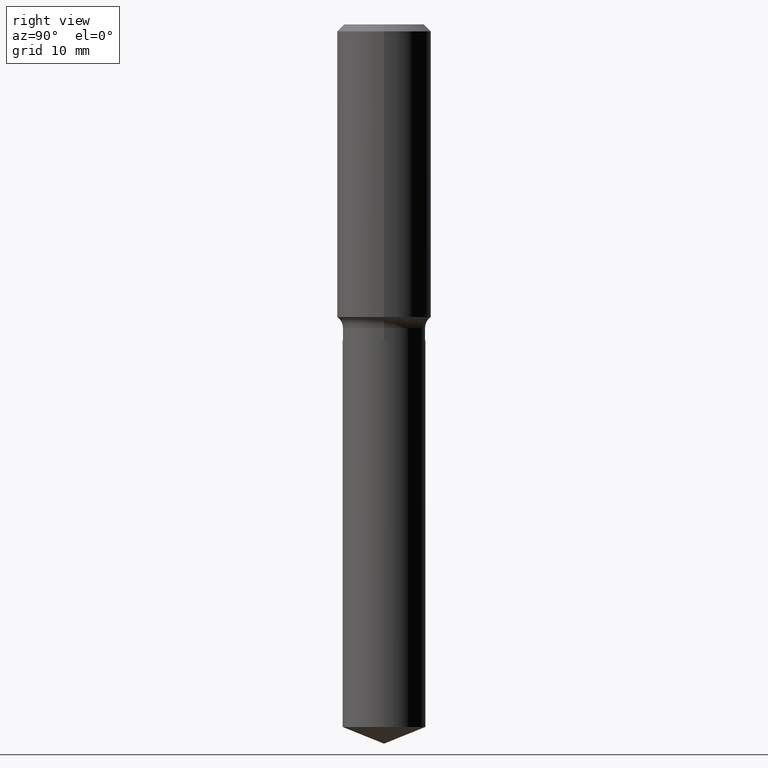
[diagram: clean part render]
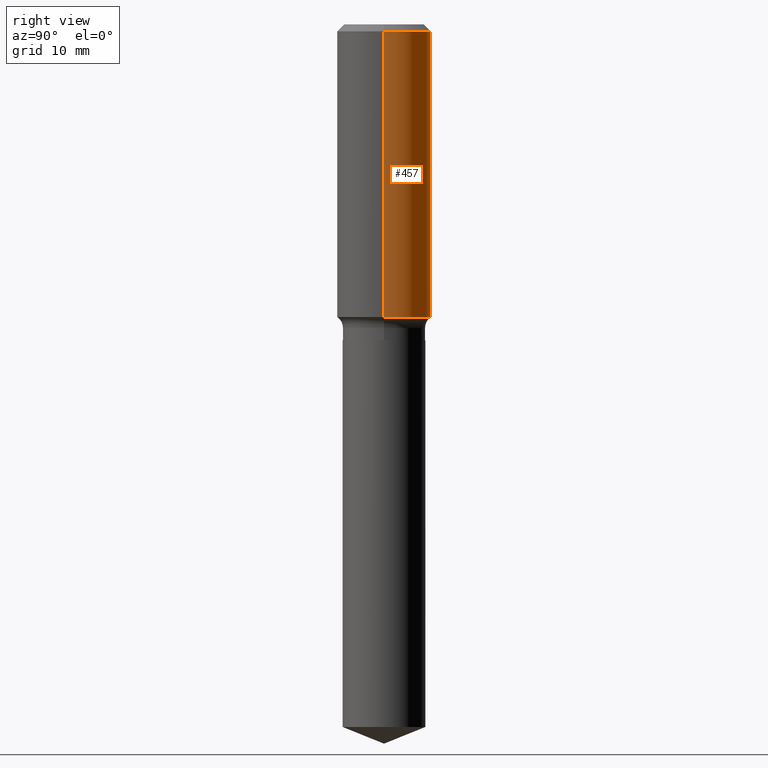
[diagram: same view with one face highlighted and labeled with its STEP entity id]
A machine part, right view. The second image highlights one B-rep face of the part: STEP entity #457.
In plain terms, the highlighted cylindrical surface (partial cylindrical patch) has radius 7.0002 mm, axis along (-0, 0, 1).
Its self-contained STEP definition (entity closure, byte-faithful):
#2 = EDGE_CURVE ( 'NONE', #32, #242, #47, .T. ) ;
#5 = EDGE_CURVE ( 'NONE', #485, #172, #347, .T. ) ;
#6 = CARTESIAN_POINT ( 'NONE',  ( 0.2756000000000001782, -7.907887728136033318E-15, -1.713709063141723332 ) ) ;
#32 = VERTEX_POINT ( 'NONE', #6 ) ;
#46 = DIRECTION ( 'NONE',  ( -2.445468806185136597E-29, 3.491481338843145583E-15, 1.000000000000000000 ) ) ;
#47 = LINE ( 'NONE', #464, #115 ) ;
#50 = CARTESIAN_POINT ( 'NONE',  ( -0.2756000000000001227, 1.958255779754836984E-15, -1.355658510874252567E-29 ) ) ;
#54 = CARTESIAN_POINT ( 'NONE',  ( 0.2756000000000000116, -2.068842352518111732E-15, -0.04134000000000025155 ) ) ;
#57 = EDGE_CURVE ( 'NONE', #242, #172, #148, .T. ) ;
#66 = FACE_OUTER_BOUND ( 'NONE', #329, .T. ) ;
#69 = AXIS2_PLACEMENT_3D ( 'NONE', #367, #70, #395 ) ;
#70 = DIRECTION ( 'NONE',  ( -2.445468806185136597E-29, 3.491481338843145583E-15, 1.000000000000000000 ) ) ;
#72 = CARTESIAN_POINT ( 'NONE',  ( -0.2756000000000000116, -1.105604746601899798E-15, -0.04134000000000025155 ) ) ;
#88 = ORIENTED_EDGE ( 'NONE', *, *, #2, .F. ) ;
#115 = VECTOR ( 'NONE', #236, 39.37007874015748143 ) ;
#117 = DIRECTION ( 'NONE',  ( -2.445468806185136877E-29, 3.491481338843145188E-15, 1.000000000000000000 ) ) ;
#119 = DIRECTION ( 'NONE',  ( 1.000000000000000000, -6.982962677686267499E-15, 0.000000000000000000 ) ) ;
#121 = ORIENTED_EDGE ( 'NONE', *, *, #5, .T. ) ;
#125 = AXIS2_PLACEMENT_3D ( 'NONE', #411, #445, #233 ) ;
#127 = CYLINDRICAL_SURFACE ( 'NONE', #69, 0.2756000000000001227 ) ;
#148 = CIRCLE ( 'NONE', #375, 0.2756000000000000116 ) ;
#161 = CIRCLE ( 'NONE', #125, 0.2756000000000001782 ) ;
#164 = CARTESIAN_POINT ( 'NONE',  ( 1.010956804476941697E-30, -1.443378385477765070E-16, -0.04134000000000025155 ) ) ;
#172 = VERTEX_POINT ( 'NONE', #72 ) ;
#233 = DIRECTION ( 'NONE',  ( 1.000000000000000000, -6.982962677686265922E-15, 0.000000000000000000 ) ) ;
#235 = VECTOR ( 'NONE', #117, 39.37007874015748143 ) ;
#236 = DIRECTION ( 'NONE',  ( -2.445468806185136877E-29, 3.491481338843145188E-15, 1.000000000000000000 ) ) ;
#242 = VERTEX_POINT ( 'NONE', #54 ) ;
#260 = ORIENTED_EDGE ( 'NONE', *, *, #269, .T. ) ;
#269 = EDGE_CURVE ( 'NONE', #32, #485, #161, .T. ) ;
#329 = EDGE_LOOP ( 'NONE', ( #260, #121, #475, #88 ) ) ;
#347 = LINE ( 'NONE', #50, #235 ) ;
#359 = CARTESIAN_POINT ( 'NONE',  ( -0.2756000000000001782, -4.025127434410860197E-15, -1.713709063141723332 ) ) ;
#367 = CARTESIAN_POINT ( 'NONE',  ( 0.000000000000000000, 0.000000000000000000, 0.000000000000000000 ) ) ;
#375 = AXIS2_PLACEMENT_3D ( 'NONE', #164, #46, #119 ) ;
#395 = DIRECTION ( 'NONE',  ( 1.000000000000000000, -6.982962677686267499E-15, 4.876176775795935793E-29 ) ) ;
#411 = CARTESIAN_POINT ( 'NONE',  ( 4.190822056789839222E-29, -5.983383214165697575E-15, -1.713709063141723332 ) ) ;
#445 = DIRECTION ( 'NONE',  ( -2.445468806185136597E-29, 3.491481338843145583E-15, 1.000000000000000000 ) ) ;
#457 = ADVANCED_FACE ( 'NONE', ( #66 ), #127, .T. ) ;
#464 = CARTESIAN_POINT ( 'NONE',  ( 0.2756000000000001227, -1.924504513970336137E-15, 1.343874319409360548E-29 ) ) ;
#475 = ORIENTED_EDGE ( 'NONE', *, *, #57, .F. ) ;
#485 = VERTEX_POINT ( 'NONE', #359 ) ;